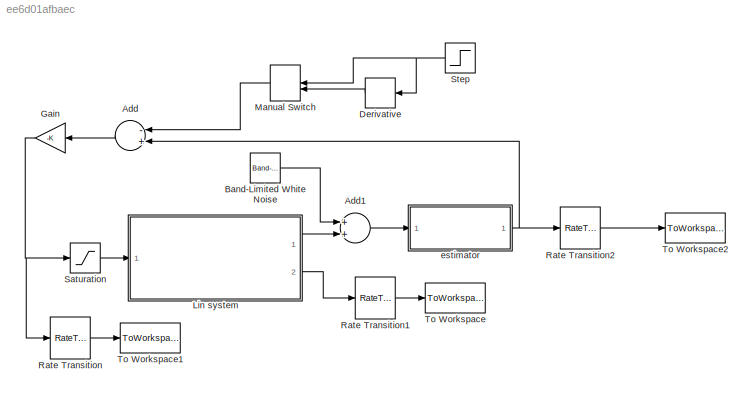
MODEL slx_ee6d01afbaec
KIND model
CONFIG AbsTol = auto
CONFIG EnableMultiTasking = off
CONFIG FixedStep = auto
CONFIG MaxStep = auto
CONFIG MinStep = auto
CONFIG RelTol = 1e-3
CONFIG SampleTimeConstraint = Unconstrained
CONFIG Solver = VariableStepAuto
CONFIG SolverName = VariableStepAuto
CONFIG StartTime = 0.0
CONFIG StopTime = simTime
BLOCK [Sum] Add
  InputSameDT = off
  Inputs = -+
  OutDataTypeStr = Inherit: Inherit via internal rule
  Ports = [2, 1]
  SaturateOnIntegerOverflow = off
BLOCK [Sum] Add1
  InputSameDT = off
  OutDataTypeStr = Inherit: Inherit via internal rule
  Ports = [2, 1]
  SaturateOnIntegerOverflow = off
BLOCK [Reference] Band-Limited White Noise  REF=simulink/Sources/Band-Limited
White Noise
  Ports = [0, 1]
  SourceBlock = simulink/Sources/Band-Limited\nWhite Noise
  SourceProductBaseCode = SL
  SourceProductName = Simulink
  SourceType = Band-Limited White Noise.
BLOCK [Derivative] Derivative
  CoefficientInTFapproximation = 1
BLOCK [Gain] Gain
  Gain = -K
  Multiplication = Matrix(K*u) (u vector)
  OutDataTypeStr = Inherit: Inherit via internal rule
  ParamDataTypeStr = Inherit: Inherit via internal rule
  SaturateOnIntegerOverflow = off
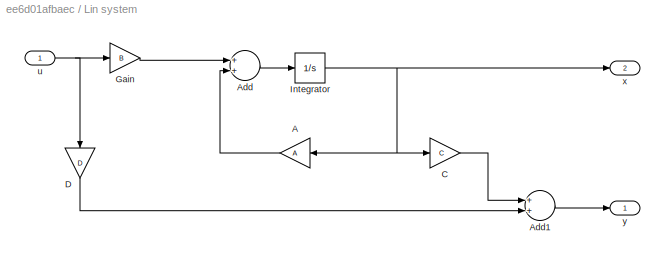
BLOCK [SubSystem] Lin system
  Ports = [1, 2]
  RequestExecContextInheritance = off
  Variant = off
BLOCK [Gain] Lin system/A
  Gain = A
  Multiplication = Matrix(K*u) (u vector)
  OutDataTypeStr = Inherit: Inherit via internal rule
  ParamDataTypeStr = Inherit: Inherit via internal rule
  SaturateOnIntegerOverflow = off
BLOCK [Sum] Lin system/Add
  InputSameDT = off
  OutDataTypeStr = Inherit: Inherit via internal rule
  Ports = [2, 1]
  SaturateOnIntegerOverflow = off
BLOCK [Sum] Lin system/Add1
  InputSameDT = off
  OutDataTypeStr = Inherit: Inherit via internal rule
  Ports = [2, 1]
  SaturateOnIntegerOverflow = off
BLOCK [Gain] Lin system/C
  Gain = C
  Multiplication = Matrix(K*u) (u vector)
  OutDataTypeStr = Inherit: Inherit via internal rule
  ParamDataTypeStr = Inherit: Inherit via internal rule
  SaturateOnIntegerOverflow = off
BLOCK [Gain] Lin system/D
  Gain = D
  Multiplication = Matrix(K*u) (u vector)
  OutDataTypeStr = Inherit: Inherit via internal rule
  ParamDataTypeStr = Inherit: Inherit via internal rule
  SaturateOnIntegerOverflow = off
BLOCK [Gain] Lin system/Gain
  Gain = B
  Multiplication = Matrix(K*u) (u vector)
  OutDataTypeStr = Inherit: Inherit via internal rule
  ParamDataTypeStr = Inherit: Inherit via internal rule
  SaturateOnIntegerOverflow = off
BLOCK [Integrator] Lin system/Integrator
  InitialCondition = x0
  Ports = [1, 1]
BLOCK [Inport] Lin system/u
  IconDisplay = Port number
BLOCK [Outport] Lin system/x
  IconDisplay = Port number
  Port = 2
BLOCK [Outport] Lin system/y
  IconDisplay = Port number
BLOCK [ManualSwitch] Manual Switch
BLOCK [RateTransition] Rate Transition
BLOCK [RateTransition] Rate Transition1
  OutPortSampleTime = Ts
BLOCK [RateTransition] Rate Transition2
  OutPortSampleTime = Ts
BLOCK [Saturate] Saturation
  InputPortMap = u0
  LowerLimit = -5
  Ports = [1, 1]
  UpperLimit = 5
BLOCK [Step] Step
  After = [theta_d;0;0;0]
  Before = x0
  SampleTime = 0
  Time = 0.1*simTime
BLOCK [ToWorkspace] To Workspace
  FixptAsFi = on
  MaxDataPoints = inf
  Ports = [1]
  SampleTime = -1
  Save2DSignal = 3-D array (concatenate along third dimension)
  SaveFormat = Timeseries
  VariableName = sim_data
BLOCK [ToWorkspace] To Workspace1
  FixptAsFi = on
  MaxDataPoints = inf
  Ports = [1]
  SampleTime = Ts
  Save2DSignal = 3-D array (concatenate along third dimension)
  SaveFormat = Timeseries
  VariableName = input_data
BLOCK [ToWorkspace] To Workspace2
  FixptAsFi = on
  MaxDataPoints = inf
  Ports = [1]
  SampleTime = Ts
  Save2DSignal = 3-D array (concatenate along third dimension)
  SaveFormat = Timeseries
  VariableName = sim_data_estimator
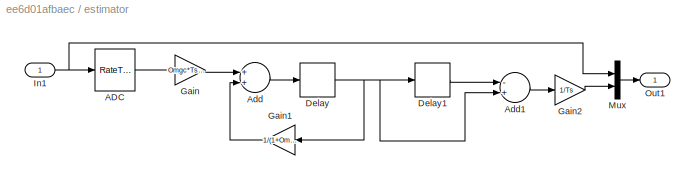
BLOCK [SubSystem] estimator
  Ports = [1, 1]
  RequestExecContextInheritance = off
  Variant = off
BLOCK [RateTransition] estimator/ADC 
  OutPortSampleTime = Ts
BLOCK [Sum] estimator/Add
  InputSameDT = off
  OutDataTypeStr = Inherit: Inherit via internal rule
  Ports = [2, 1]
  SaturateOnIntegerOverflow = off
BLOCK [Sum] estimator/Add1
  InputSameDT = off
  Inputs = -+
  OutDataTypeStr = Inherit: Inherit via internal rule
  Ports = [2, 1]
  SaturateOnIntegerOverflow = off
BLOCK [Delay] estimator/Delay
  DelayLength = 1
  InitialCondition = 0
  InputPortMap = u0
  Ports = [1, 1]
BLOCK [Delay] estimator/Delay1
  DelayLength = 1
  InitialCondition = 0
  InputPortMap = u0
  Ports = [1, 1]
BLOCK [Gain] estimator/Gain
  Gain = Omgc*Ts/(1+Omgc*Ts)
  OutDataTypeStr = Inherit: Inherit via internal rule
  ParamDataTypeStr = Inherit: Inherit via internal rule
  SaturateOnIntegerOverflow = off
BLOCK [Gain] estimator/Gain1
  Gain = 1/(1+Omgc*Ts)
  OutDataTypeStr = Inherit: Inherit via internal rule
  ParamDataTypeStr = Inherit: Inherit via internal rule
  SaturateOnIntegerOverflow = off
BLOCK [Gain] estimator/Gain2
  Gain = 1/Ts
  OutDataTypeStr = Inherit: Inherit via internal rule
  ParamDataTypeStr = Inherit: Inherit via internal rule
  SaturateOnIntegerOverflow = off
BLOCK [Inport] estimator/In1
  IconDisplay = Port number
BLOCK [Mux] estimator/Mux
  DisplayOption = bar
  Inputs = 2
  Ports = [2, 1]
BLOCK [Outport] estimator/Out1
  IconDisplay = Port number
LINE Add1:1 -> estimator:1
LINE Add:1 -> Gain:1
LINE Band-Limited White Noise:1 -> Add1:1
LINE Derivative:1 -> Manual Switch:2
NET Gain:1 -> Rate Transition:1, Saturation:1
LINE Lin system/A:1 -> Lin system/Add:2
LINE Lin system/Add1:1 -> Lin system/y:1
LINE Lin system/Add:1 -> Lin system/Integrator:1
LINE Lin system/C:1 -> Lin system/Add1:1
LINE Lin system/D:1 -> Lin system/Add1:2
LINE Lin system/Gain:1 -> Lin system/Add:1
NET Lin system/Integrator:1 -> Lin system/A:1, Lin system/C:1, Lin system/x:1
NET Lin system/u:1 -> Lin system/D:1, Lin system/Gain:1
LINE Lin system:1 -> Add1:2
LINE Lin system:2 -> Rate Transition1:1
LINE Manual Switch:1 -> Add:1
LINE Rate Transition1:1 -> To Workspace:1
LINE Rate Transition2:1 -> To Workspace2:1
LINE Rate Transition:1 -> To Workspace1:1
LINE Saturation:1 -> Lin system:1
NET Step:1 -> Derivative:1, Manual Switch:1
LINE estimator/ADC :1 -> estimator/Gain:1
LINE estimator/Add1:1 -> estimator/Gain2:1
LINE estimator/Add:1 -> estimator/Delay:1
LINE estimator/Delay1:1 -> estimator/Add1:1
NET estimator/Delay:1 -> estimator/Add1:2, estimator/Delay1:1, estimator/Gain1:1
LINE estimator/Gain1:1 -> estimator/Add:2
LINE estimator/Gain2:1 -> estimator/Mux:2
LINE estimator/Gain:1 -> estimator/Add:1
NET estimator/In1:1 -> estimator/ADC :1, estimator/Mux:1
LINE estimator/Mux:1 -> estimator/Out1:1
NET estimator:1 -> Add:2, Rate Transition2:1
note: NET lines group one-source signal fan-out (src -> all destinations, sorted); 1:1 wires keep LINE
